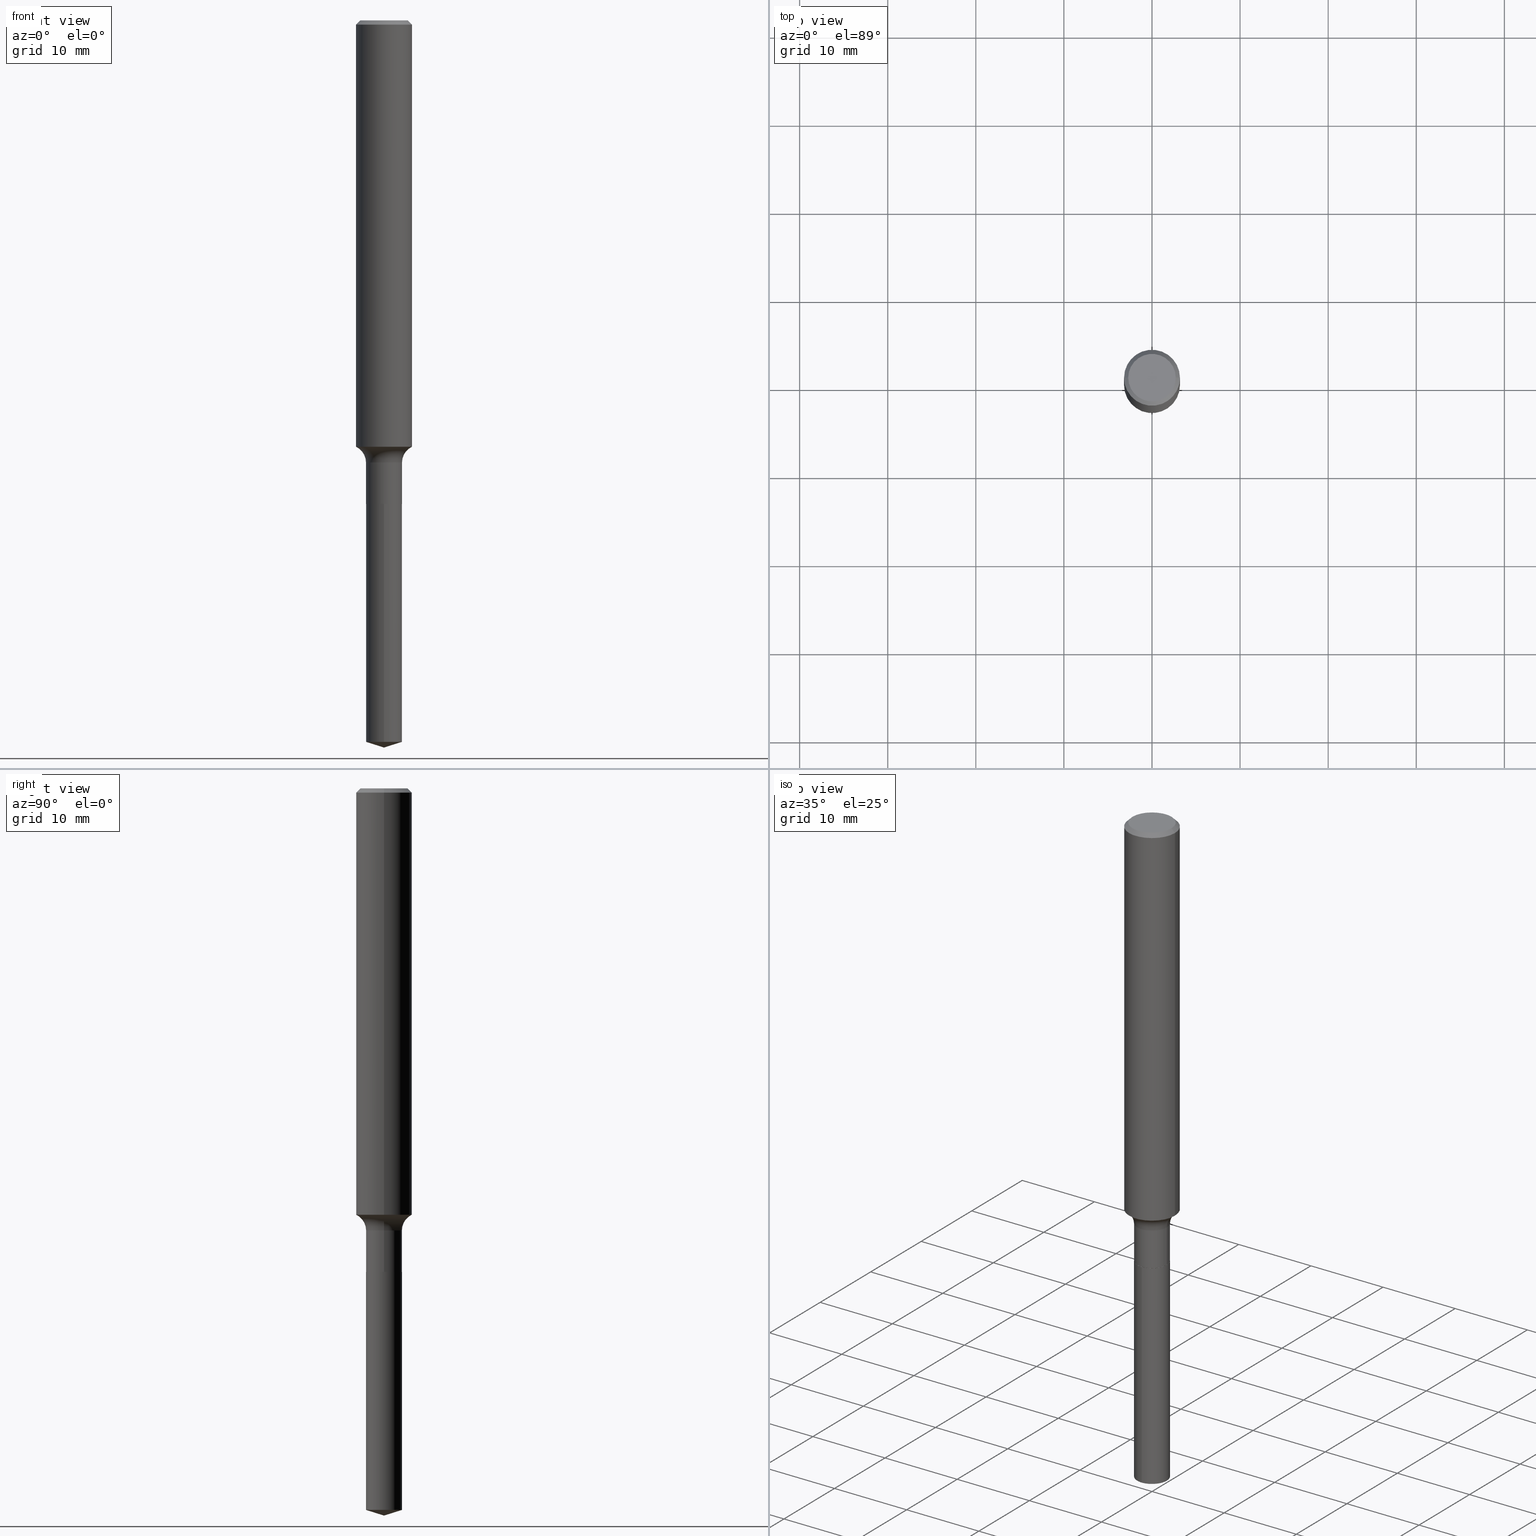
[diagram: canonical four-view strip — front | top / right | iso, engineering-drawing reading convention]
A machine part, canonical four-view strip (front | top / right | iso — engineering-drawing reading convention). The complete STEP part file that produces these views, byte-faithful:
ISO-10303-21;
HEADER;
FILE_DESCRIPTION (( 'STEP AP203' ),
    '1' );
FILE_NAME ('51587.STEP',
    '2024-04-19T13:04:09',
    ( '' ),
    ( '' ),
    'SwSTEP 2.0',
    'SolidWorks 2023',
    '' );
FILE_SCHEMA (( 'CONFIG_CONTROL_DESIGN' ));
ENDSEC;

DATA;
#1 = DIRECTION ( 'NONE',  ( -2.445357764823605070E-29, 3.491640356392940619E-15, 1.000000000000000000 ) ) ;
#2 = DIRECTION ( 'NONE',  ( 2.445468806185136597E-29, -3.491481338843145583E-15, -1.000000000000000000 ) ) ;
#3 = ORIENTED_EDGE ( 'NONE', *, *, #185, .T. ) ;
#4 = EDGE_CURVE ( 'NONE', #362, #324, #256, .T. ) ;
#5 = AXIS2_PLACEMENT_3D ( 'NONE', #204, #42, #87 ) ;
#6 = CARTESIAN_POINT ( 'NONE',  ( 7.885585719558198762E-29, -1.125886426831843108E-14, -3.224618447495242179 ) ) ;
#7 = VERTEX_POINT ( 'NONE', #62 ) ;
#8 = DIRECTION ( 'NONE',  ( -6.982962677686266711E-15, -1.000000000000000000, 3.393599992129519526E-15 ) ) ;
#9 = CARTESIAN_POINT ( 'NONE',  ( 1.316475442586645047E-30, -1.492449556612563060E-14, -2.161000000000000032 ) ) ;
#10 = AXIS2_PLACEMENT_3D ( 'NONE', #413, #480, #293 ) ;
#11 = CIRCLE ( 'NONE', #233, 0.08050000000000000211 ) ;
#12 = FACE_OUTER_BOUND ( 'NONE', #163, .T. ) ;
#13 = EDGE_LOOP ( 'NONE', ( #118, #239, #236, #288 ) ) ;
#14 = FACE_OUTER_BOUND ( 'NONE', #129, .T. ) ;
#15 = VERTEX_POINT ( 'NONE', #339 ) ;
#16 = CARTESIAN_POINT ( 'NONE',  ( 5.284658090166081280E-29, -7.545091173240038191E-15, -2.161000000000000032 ) ) ;
#17 = ORIENTED_EDGE ( 'NONE', *, *, #60, .F. ) ;
#18 = ORIENTED_EDGE ( 'NONE', *, *, #76, .T. ) ;
#19 = SECURITY_CLASSIFICATION_LEVEL ( 'unclassified' ) ;
#20 = ORIENTED_EDGE ( 'NONE', *, *, #343, .T. ) ;
#21 = MECHANICAL_CONTEXT ( 'NONE', #359, 'mechanical' ) ;
#22 = CARTESIAN_POINT ( 'NONE',  ( 0.000000000000000000, 0.000000000000000000, 0.000000000000000000 ) ) ;
#23 = SHAPE_DEFINITION_REPRESENTATION ( #435, #126 ) ;
#24 = DIRECTION ( 'NONE',  ( 1.000000000000000000, -6.982962677686264344E-15, 0.000000000000000000 ) ) ;
#25 = CLOSED_SHELL ( 'NONE', ( #135, #322, #88, #379, #66, #164, #175, #376, #196, #281, #464, #301 ) ) ;
#26 = DIRECTION ( 'NONE',  ( 1.000000000000000000, -6.982962677686265133E-15, 4.883557194083112901E-29 ) ) ;
#27 = DATE_TIME_ROLE ( 'classification_date' ) ;
#28 = FACE_OUTER_BOUND ( 'NONE', #452, .T. ) ;
#29 = CYLINDRICAL_SURFACE ( 'NONE', #403, 0.08050000000000000211 ) ;
#30 = VECTOR ( 'NONE', #383, 39.37007874015748143 ) ;
#31 = DIRECTION ( 'NONE',  ( -1.000000000000000000, 6.982962677686266711E-15, 0.000000000000000000 ) ) ;
#32 = APPROVAL ( #479, 'UNSPECIFIED' ) ;
#33 = CARTESIAN_POINT ( 'NONE',  ( 0.1250000000000001110, -8.728703347107842263E-16, 6.095220969744926047E-30 ) ) ;
#34 = FACE_OUTER_BOUND ( 'NONE', #52, .T. ) ;
#35 = EDGE_CURVE ( 'NONE', #120, #475, #58, .T. ) ;
#36 = ORIENTED_EDGE ( 'NONE', *, *, #76, .F. ) ;
#37 = VECTOR ( 'NONE', #140, 39.37007874015748143 ) ;
#38 = AXIS2_PLACEMENT_3D ( 'NONE', #112, #270, #227 ) ;
#39 = CARTESIAN_POINT ( 'NONE',  ( 0.08000000000000000167, -8.103728187454939844E-15, -2.161000000000000476 ) ) ;
#40 = LINE ( 'NONE', #390, #482 ) ;
#41 = ORIENTED_EDGE ( 'NONE', *, *, #458, .T. ) ;
#42 = DIRECTION ( 'NONE',  ( -2.445468806185136597E-29, 3.491481338843145583E-15, 1.000000000000000000 ) ) ;
#43 = ORIENTED_EDGE ( 'NONE', *, *, #35, .F. ) ;
#44 = CIRCLE ( 'NONE', #93, 0.08000000000000000167 ) ;
#45 = CARTESIAN_POINT ( 'NONE',  ( 6.364025535057318316E-46, -9.086141822531067035E-32, -2.602374448188125350E-17 ) ) ;
#46 = EDGE_CURVE ( 'NONE', #150, #463, #65, .T. ) ;
#47 = ORIENTED_EDGE ( 'NONE', *, *, #260, .T. ) ;
#48 = PLANE ( 'NONE',  #210 ) ;
#49 = EDGE_LOOP ( 'NONE', ( #43, #166, #266, #79 ) ) ;
#50 = EDGE_CURVE ( 'NONE', #108, #316, #411, .T. ) ;
#51 = DIRECTION ( 'NONE',  ( 1.000000000000000000, -6.982962677686265922E-15, 4.876176775795935793E-29 ) ) ;
#52 = EDGE_LOOP ( 'NONE', ( #89, #262, #425 ) ) ;
#53 = COORDINATED_UNIVERSAL_TIME_OFFSET ( 5, 0, .BEHIND. ) ;
#54 = EDGE_LOOP ( 'NONE', ( #78, #432, #106, #170 ) ) ;
#55 = CC_DESIGN_SECURITY_CLASSIFICATION ( #225, ( #335 ) ) ;
#56 = DESIGN_CONTEXT ( 'detailed design', #468, 'design' ) ;
#57 = COORDINATED_UNIVERSAL_TIME_OFFSET ( 5, 0, .BEHIND. ) ;
#58 = LINE ( 'NONE', #221, #348 ) ;
#59 = COORDINATED_UNIVERSAL_TIME_OFFSET ( 5, 0, .BEHIND. ) ;
#60 = EDGE_CURVE ( 'NONE', #226, #120, #296, .T. ) ;
#61 = CARTESIAN_POINT ( 'NONE',  ( 7.947896864779860842E-29, -1.134714388442684454E-14, -3.250000000000000000 ) ) ;
#62 = CARTESIAN_POINT ( 'NONE',  ( -0.1250000000000000000, -2.470819200019294286E-15, -0.01875000000000014155 ) ) ;
#63 = VECTOR ( 'NONE', #128, 39.37007874015748854 ) ;
#64 = CARTESIAN_POINT ( 'NONE',  ( 5.719869022869593535E-16, 0.08049999999998874722, -3.224618447495242624 ) ) ;
#65 = LINE ( 'NONE', #375, #121 ) ;
#66 = ADVANCED_FACE ( 'NONE', ( #28 ), #184, .T. ) ;
#67 = DIRECTION ( 'NONE',  ( -2.445357764823605070E-29, 3.491640356392940619E-15, 1.000000000000000000 ) ) ;
#68 = ORIENTED_EDGE ( 'NONE', *, *, #103, .T. ) ;
#69 = VECTOR ( 'NONE', #419, 39.37007874015748143 ) ;
#70 = CARTESIAN_POINT ( 'NONE',  ( 0.08049999999999998823, -7.460597324840031108E-15, -1.975800000000000001 ) ) ;
#71 = PLANE ( 'NONE',  #241 ) ;
#72 = DIRECTION ( 'NONE',  ( -6.982962677686266711E-15, -1.000000000000000000, 3.393599992129519526E-15 ) ) ;
#73 = ADVANCED_FACE ( 'NONE', ( #487 ), #176, .T. ) ;
#74 = AXIS2_PLACEMENT_3D ( 'NONE', #77, #431, #437 ) ;
#75 = CARTESIAN_POINT ( 'NONE',  ( -0.08000000000000000167, -6.974007757457847126E-15, -2.161000000000000476 ) ) ;
#76 = EDGE_CURVE ( 'NONE', #200, #316, #408, .T. ) ;
#77 = CARTESIAN_POINT ( 'NONE',  ( 0.000000000000000000, 0.000000000000000000, 0.000000000000000000 ) ) ;
#78 = ORIENTED_EDGE ( 'NONE', *, *, #387, .F. ) ;
#79 = ORIENTED_EDGE ( 'NONE', *, *, #309, .F. ) ;
#80 = CC_DESIGN_PERSON_AND_ORGANIZATION_ASSIGNMENT ( #366, #91, ( #335 ) ) ;
#81 = AXIS2_PLACEMENT_3D ( 'NONE', #16, #426, #246 ) ;
#82 = DIRECTION ( 'NONE',  ( 7.105427357601001859E-15, 1.000000000000000000, -3.491481338843145583E-15 ) ) ;
#83 = ORIENTED_EDGE ( 'NONE', *, *, #50, .T. ) ;
#84 = DIMENSIONAL_EXPONENTS ( 1.000000000000000000, 0.000000000000000000, 0.000000000000000000, 0.000000000000000000, 0.000000000000000000, 0.000000000000000000, 0.000000000000000000 ) ;
#85 = DIRECTION ( 'NONE',  ( -0.7071067811865454633, 2.468850131082235367E-15, -0.7071067811865495711 ) ) ;
#86 = EDGE_LOOP ( 'NONE', ( #394, #155, #18, #161 ) ) ;
#87 = DIRECTION ( 'NONE',  ( 1.000000000000000000, -6.982962677686265133E-15, 4.883557194083112901E-29 ) ) ;
#88 = ADVANCED_FACE ( 'NONE', ( #252 ), #99, .T. ) ;
#89 = ORIENTED_EDGE ( 'NONE', *, *, #343, .F. ) ;
#90 = MANIFOLD_SOLID_BREP ( 'Body-Move/Copy2[1]', #315 ) ;
#91 = PERSON_AND_ORGANIZATION_ROLE ( 'design_supplier' ) ;
#92 = AXIS2_PLACEMENT_3D ( 'NONE', #449, #134, #102 ) ;
#93 = AXIS2_PLACEMENT_3D ( 'NONE', #187, #145, #300 ) ;
#94 = DIRECTION ( 'NONE',  ( -6.982962677686266711E-15, -1.000000000000000000, 3.491481338843145583E-15 ) ) ;
#95 = PERSON_AND_ORGANIZATION ( #421, #169 ) ;
#96 = MANIFOLD_SOLID_BREP ( 'Body-Move/Copy2[2]', #25 ) ;
#97 = CARTESIAN_POINT ( 'NONE',  ( 5.284658090166081280E-29, -7.545091173240038191E-15, -2.161000000000000032 ) ) ;
#98 = FACE_OUTER_BOUND ( 'NONE', #54, .T. ) ;
#99 = CYLINDRICAL_SURFACE ( 'NONE', #168, 0.1250000000000001110 ) ;
#100 = CIRCLE ( 'NONE', #265, 0.1250000000000000000 ) ;
#101 = LOCAL_TIME ( 9, 4, 9.000000000000000000, #250 ) ;
#102 = DIRECTION ( 'NONE',  ( 1.000000000000000000, -6.982962677686259611E-15, 0.000000000000000000 ) ) ;
#103 = EDGE_CURVE ( 'NONE', #200, #402, #209, .T. ) ;
#104 = CC_DESIGN_PERSON_AND_ORGANIZATION_ASSIGNMENT ( #440, #172, ( #225 ) ) ;
#105 = DIRECTION ( 'NONE',  ( -1.000000000000000000, 6.982962677686265922E-15, -4.876176775795935793E-29 ) ) ;
#106 = ORIENTED_EDGE ( 'NONE', *, *, #171, .T. ) ;
#107 = DIRECTION ( 'NONE',  ( -2.445468806185136597E-29, 3.491481338843145583E-15, 1.000000000000000000 ) ) ;
#108 = VERTEX_POINT ( 'NONE', #369 ) ;
#109 = CIRCLE ( 'NONE', #378, 0.07800000000000002764 ) ;
#110 = APPROVAL_PERSON_ORGANIZATION ( #254, #167, #255 ) ;
#111 = CARTESIAN_POINT ( 'NONE',  ( -8.832627505290184583E-28, 1.261186682421496616E-13, 36.12007874015748143 ) ) ;
#112 = CARTESIAN_POINT ( 'NONE',  ( -8.832627505290184583E-28, 1.261186682421496616E-13, 36.12007874015748143 ) ) ;
#113 = CARTESIAN_POINT ( 'NONE',  ( -5.621284955536915100E-16, -0.08050000000000755163, -2.161000000000000032 ) ) ;
#114 = AXIS2_PLACEMENT_3D ( 'NONE', #222, #336, #406 ) ;
#115 = CIRCLE ( 'NONE', #159, 0.1062499999999999972 ) ;
#116 = CARTESIAN_POINT ( 'NONE',  ( 5.284658090166081280E-29, -7.545091173240038191E-15, -2.161000000000000032 ) ) ;
#117 = ORIENTED_EDGE ( 'NONE', *, *, #453, .T. ) ;
#118 = ORIENTED_EDGE ( 'NONE', *, *, #337, .F. ) ;
#119 = FACE_OUTER_BOUND ( 'NONE', #157, .T. ) ;
#120 = VERTEX_POINT ( 'NONE', #64 ) ;
#121 = VECTOR ( 'NONE', #441, 39.37007874015748143 ) ;
#122 = CIRCLE ( 'NONE', #151, 0.08050000000000000211 ) ;
#123 = DIRECTION ( 'NONE',  ( -2.445468806185136597E-29, 3.491481338843145583E-15, 1.000000000000000000 ) ) ;
#124 = CC_DESIGN_APPROVAL ( #32, ( #225 ) ) ;
#125 = VERTEX_POINT ( 'NONE', #299 ) ;
#126 = ADVANCED_BREP_SHAPE_REPRESENTATION ( '51587', ( #90, #96, #447 ), #355 ) ;
#127 = CC_DESIGN_DATE_AND_TIME_ASSIGNMENT ( #220, #27, ( #225 ) ) ;
#128 = DIRECTION ( 'NONE',  ( -6.659769872151632089E-15, -0.9537169507482267106, 0.3007057995042733411 ) ) ;
#129 = EDGE_LOOP ( 'NONE', ( #313, #283, #194, #328 ) ) ;
#130 = PERSON_AND_ORGANIZATION_ROLE ( 'creator' ) ;
#131 = CARTESIAN_POINT ( 'NONE',  ( 5.283435355762988478E-29, -7.543345432570617477E-15, -2.160500000000000309 ) ) ;
#132 = PERSON_AND_ORGANIZATION_ROLE ( 'design_owner' ) ;
#133 = APPROVAL_PERSON_ORGANIZATION ( #95, #302, #409 ) ;
#134 = DIRECTION ( 'NONE',  ( -2.445468806185136597E-29, 3.491481338843145583E-15, 1.000000000000000000 ) ) ;
#135 = ADVANCED_FACE ( 'NONE', ( #251 ), #481, .T. ) ;
#136 = CARTESIAN_POINT ( 'NONE',  ( 0.000000000000000000, 0.000000000000000000, 0.000000000000000000 ) ) ;
#137 = CARTESIAN_POINT ( 'NONE',  ( 0.1062499999999999972, -8.259777185439880671E-16, -2.602374448187577153E-17 ) ) ;
#138 = EDGE_CURVE ( 'NONE', #15, #243, #232, .T. ) ;
#139 = CALENDAR_DATE ( 2024, 19, 4 ) ;
#140 = DIRECTION ( 'NONE',  ( -2.445468806185136877E-29, 3.491481338843145188E-15, 1.000000000000000000 ) ) ;
#141 = APPROVAL_DATE_TIME ( #213, #167 ) ;
#142 = DIRECTION ( 'NONE',  ( -6.982962677686266711E-15, -1.000000000000000000, 3.393599992129519526E-15 ) ) ;
#143 = CIRCLE ( 'NONE', #334, 0.08050000000000000211 ) ;
#144 = VECTOR ( 'NONE', #1, 39.37007874015748143 ) ;
#145 = DIRECTION ( 'NONE',  ( -2.445468806185136597E-29, 3.491481338843145583E-15, 1.000000000000000000 ) ) ;
#146 = LINE ( 'NONE', #235, #393 ) ;
#147 = EDGE_CURVE ( 'NONE', #402, #200, #143, .T. ) ;
#148 = ORIENTED_EDGE ( 'NONE', *, *, #185, .F. ) ;
#149 = DIRECTION ( 'NONE',  ( -1.000000000000000000, 6.982962677686266711E-15, 0.000000000000000000 ) ) ;
#150 = VERTEX_POINT ( 'NONE', #137 ) ;
#151 = AXIS2_PLACEMENT_3D ( 'NONE', #272, #349, #189 ) ;
#152 = CARTESIAN_POINT ( 'NONE',  ( -0.08050000000000000211, 5.719869022868806646E-16, -3.959742747655199208E-30 ) ) ;
#153 = ORIENTED_EDGE ( 'NONE', *, *, #337, .T. ) ;
#154 = CARTESIAN_POINT ( 'NONE',  ( -5.621284955536915100E-16, -0.08050000000000755163, -2.161000000000000032 ) ) ;
#155 = ORIENTED_EDGE ( 'NONE', *, *, #147, .T. ) ;
#156 = CYLINDRICAL_SURFACE ( 'NONE', #188, 0.08050000000000000211 ) ;
#157 = EDGE_LOOP ( 'NONE', ( #436, #203 ) ) ;
#158 = VECTOR ( 'NONE', #310, 39.37007874015748143 ) ;
#159 = AXIS2_PLACEMENT_3D ( 'NONE', #45, #244, #392 ) ;
#160 = DIRECTION ( 'NONE',  ( -1.000000000000000000, 7.105427357600995548E-15, 0.000000000000000000 ) ) ;
#161 = ORIENTED_EDGE ( 'NONE', *, *, #50, .F. ) ;
#162 = LENGTH_MEASURE_WITH_UNIT ( LENGTH_MEASURE( 0.02539999999999999897 ), #279 );
#163 = EDGE_LOOP ( 'NONE', ( #354, #358 ) ) ;
#164 = ADVANCED_FACE ( 'NONE', ( #477 ), #29, .T. ) ;
#165 = CYLINDRICAL_SURFACE ( 'NONE', #74, 0.1250000000000001110 ) ;
#166 = ORIENTED_EDGE ( 'NONE', *, *, #234, .T. ) ;
#167 = APPROVAL ( #374, 'UNSPECIFIED' ) ;
#168 = AXIS2_PLACEMENT_3D ( 'NONE', #439, #216, #214 ) ;
#169 = ORGANIZATION ( 'UNSPECIFIED', 'UNSPECIFIED', '' ) ;
#170 = ORIENTED_EDGE ( 'NONE', *, *, #430, .T. ) ;
#171 = EDGE_CURVE ( 'NONE', #362, #316, #109, .T. ) ;
#172 = PERSON_AND_ORGANIZATION_ROLE ( 'classification_officer' ) ;
#173 = EDGE_LOOP ( 'NONE', ( #278, #153 ) ) ;
#174 = APPLICATION_PROTOCOL_DEFINITION ( 'international standard', 'config_control_design', 1994, #359 ) ;
#175 = ADVANCED_FACE ( 'NONE', ( #98 ), #325, .F. ) ;
#176 = CYLINDRICAL_SURFACE ( 'NONE', #422, 0.08050000000000000211 ) ;
#177 = CIRCLE ( 'NONE', #305, 0.1250000000000000000 ) ;
#178 = LOCAL_TIME ( 9, 4, 9.000000000000000000, #57 ) ;
#179 = CARTESIAN_POINT ( 'NONE',  ( 0.08050000000000000211, -5.621284955537444623E-16, 3.925322304515727977E-30 ) ) ;
#180 = EDGE_CURVE ( 'NONE', #402, #108, #410, .T. ) ;
#181 = APPROVAL_STATUS ( 'not_yet_approved' ) ;
#182 = DIRECTION ( 'NONE',  ( -2.445468806185136597E-29, 3.491481338843145583E-15, 1.000000000000000000 ) ) ;
#183 = DIRECTION ( 'NONE',  ( 1.000000000000000000, 0.000000000000000000, 0.000000000000000000 ) ) ;
#184 = CYLINDRICAL_SURFACE ( 'NONE', #291, 0.08050000000000000211 ) ;
#185 = EDGE_CURVE ( 'NONE', #324, #7, #146, .T. ) ;
#186 = VECTOR ( 'NONE', #367, 39.37007874015748143 ) ;
#187 = CARTESIAN_POINT ( 'NONE',  ( 5.284658090166081280E-29, -7.545091173240039769E-15, -2.161000000000000476 ) ) ;
#188 = AXIS2_PLACEMENT_3D ( 'NONE', #116, #277, #206 ) ;
#189 = DIRECTION ( 'NONE',  ( -6.982962677686266711E-15, -1.000000000000000000, 6.787199984259039052E-15 ) ) ;
#190 = CARTESIAN_POINT ( 'NONE',  ( 5.284658090166081280E-29, -7.545091173240038191E-15, -2.161000000000000032 ) ) ;
#191 = ORIENTED_EDGE ( 'NONE', *, *, #180, .T. ) ;
#192 = EDGE_CURVE ( 'NONE', #7, #463, #177, .T. ) ;
#193 = DIRECTION ( 'NONE',  ( 1.000000000000000000, -6.982962677686266711E-15, 0.000000000000000000 ) ) ;
#194 = ORIENTED_EDGE ( 'NONE', *, *, #229, .F. ) ;
#195 = CONICAL_SURFACE ( 'NONE', #472, 0.1250000000000000000, 0.7853981633974453924 ) ;
#196 = ADVANCED_FACE ( 'NONE', ( #459 ), #195, .T. ) ;
#197 = LINE ( 'NONE', #33, #363 ) ;
#198 = CARTESIAN_POINT ( 'NONE',  ( 7.947412735676717178E-29, -1.134783115827705780E-14, -3.250000000000000000 ) ) ;
#199 = CARTESIAN_POINT ( 'NONE',  ( -0.1062499999999999972, 7.746724220558198188E-16, -2.602374448188655674E-17 ) ) ;
#200 = VERTEX_POINT ( 'NONE', #303 ) ;
#201 = LOCAL_TIME ( 9, 4, 9.000000000000000000, #486 ) ;
#202 = CARTESIAN_POINT ( 'NONE',  ( 4.585254011597165626E-31, -6.546527510330947764E-17, -0.01875000000000014155 ) ) ;
#203 = ORIENTED_EDGE ( 'NONE', *, *, #309, .T. ) ;
#204 = CARTESIAN_POINT ( 'NONE',  ( 4.831757267260592925E-29, -6.898468829286286448E-15, -1.975800000000000001 ) ) ;
#205 = ORIENTED_EDGE ( 'NONE', *, *, #453, .F. ) ;
#206 = DIRECTION ( 'NONE',  ( -6.982962677686266711E-15, -1.000000000000000000, 3.393599992129519526E-15 ) ) ;
#207 = ORIENTED_EDGE ( 'NONE', *, *, #253, .F. ) ;
#208 = ADVANCED_FACE ( 'NONE', ( #34 ), #257, .T. ) ;
#209 = CIRCLE ( 'NONE', #248, 0.08050000000000000211 ) ;
#210 = AXIS2_PLACEMENT_3D ( 'NONE', #9, #399, #51 ) ;
#211 = AXIS2_PLACEMENT_3D ( 'NONE', #323, #82, #160 ) ;
#212 = VERTEX_POINT ( 'NONE', #113 ) ;
#213 = DATE_AND_TIME ( #329, #178 ) ;
#214 = DIRECTION ( 'NONE',  ( 1.000000000000000000, -6.982962677686267499E-15, 4.876176775795936353E-29 ) ) ;
#215 = CALENDAR_DATE ( 2024, 19, 4 ) ;
#216 = DIRECTION ( 'NONE',  ( -2.445468806185136597E-29, 3.491481338843145583E-15, 1.000000000000000000 ) ) ;
#217 = CIRCLE ( 'NONE', #307, 0.08050000000000000211 ) ;
#218 = CARTESIAN_POINT ( 'NONE',  ( 4.831757267260592925E-29, -6.898468829286286448E-15, -1.975800000000000001 ) ) ;
#219 = EDGE_CURVE ( 'NONE', #125, #120, #122, .T. ) ;
#220 = DATE_AND_TIME ( #412, #101 ) ;
#221 = CARTESIAN_POINT ( 'NONE',  ( 5.719869022869334197E-16, 0.08049999999999245259, -2.161000000000000476 ) ) ;
#222 = CARTESIAN_POINT ( 'NONE',  ( 5.284658090166081280E-29, -7.545091173240039769E-15, -2.161000000000000476 ) ) ;
#223 = DIRECTION ( 'NONE',  ( 2.445468806185136597E-29, -3.491481338843145583E-15, -1.000000000000000000 ) ) ;
#224 = AXIS2_PLACEMENT_3D ( 'NONE', #465, #361, #428 ) ;
#225 = SECURITY_CLASSIFICATION ( '', '', #19 ) ;
#226 = VERTEX_POINT ( 'NONE', #420 ) ;
#227 = DIRECTION ( 'NONE',  ( -6.982962677686265133E-15, -1.000000000000000000, 3.500519750498698121E-15 ) ) ;
#228 = DIRECTION ( 'NONE',  ( -2.445357764823605070E-29, 3.491640356392940619E-15, 1.000000000000000000 ) ) ;
#229 = EDGE_CURVE ( 'NONE', #212, #475, #11, .T. ) ;
#230 = EDGE_LOOP ( 'NONE', ( #280, #3, #311, #207 ) ) ;
#231 = LINE ( 'NONE', #154, #144 ) ;
#232 = CIRCLE ( 'NONE', #114, 0.08000000000000000167 ) ;
#233 = AXIS2_PLACEMENT_3D ( 'NONE', #423, #344, #72 ) ;
#234 = EDGE_CURVE ( 'NONE', #120, #125, #217, .T. ) ;
#235 = CARTESIAN_POINT ( 'NONE',  ( -0.1250000000000001110, 8.881784197001260212E-16, -6.148668862818637832E-30 ) ) ;
#236 = ORIENTED_EDGE ( 'NONE', *, *, #442, .T. ) ;
#237 = DIRECTION ( 'NONE',  ( -2.445468806185136597E-29, 3.491481338843145583E-15, 1.000000000000000000 ) ) ;
#238 = ORIENTED_EDGE ( 'NONE', *, *, #234, .F. ) ;
#239 = ORIENTED_EDGE ( 'NONE', *, *, #46, .T. ) ;
#240 = AXIS2_PLACEMENT_3D ( 'NONE', #218, #372, #26 ) ;
#241 = AXIS2_PLACEMENT_3D ( 'NONE', #382, #351, #105 ) ;
#242 = DIRECTION ( 'NONE',  ( 1.000000000000000000, -6.982962677686267499E-15, 0.000000000000000000 ) ) ;
#243 = VERTEX_POINT ( 'NONE', #75 ) ;
#244 = DIRECTION ( 'NONE',  ( -2.445468806185136597E-29, 3.491481338843145583E-15, 1.000000000000000000 ) ) ;
#245 = CARTESIAN_POINT ( 'NONE',  ( 4.659499201386203466E-29, -6.652529964335534624E-15, -1.905360309483927761 ) ) ;
#246 = DIRECTION ( 'NONE',  ( 6.982962677686265922E-15, 1.000000000000000000, -3.491640356392940619E-15 ) ) ;
#247 = DIRECTION ( 'NONE',  ( -2.445468806185136597E-29, 3.491481338843145583E-15, 1.000000000000000000 ) ) ;
#248 = AXIS2_PLACEMENT_3D ( 'NONE', #333, #414, #259 ) ;
#249 = LOCAL_TIME ( 9, 4, 9.000000000000000000, #53 ) ;
#250 = COORDINATED_UNIVERSAL_TIME_OFFSET ( 5, 0, .BEHIND. ) ;
#251 = FACE_OUTER_BOUND ( 'NONE', #397, .T. ) ;
#252 = FACE_OUTER_BOUND ( 'NONE', #230, .T. ) ;
#253 = EDGE_CURVE ( 'NONE', #362, #463, #197, .T. ) ;
#254 = PERSON_AND_ORGANIZATION ( #421, #169 ) ;
#255 = APPROVAL_ROLE ( '' ) ;
#256 = CIRCLE ( 'NONE', #461, 0.1250000000000002498 ) ;
#257 = CONICAL_SURFACE ( 'NONE', #38, 124.8659371009152892, 1.265363707695892126 ) ;
#258 = DIRECTION ( 'NONE',  ( -2.445357764823605070E-29, 3.491640356392940619E-15, 1.000000000000000000 ) ) ;
#259 = DIRECTION ( 'NONE',  ( 1.000000000000000000, -6.982962677686266711E-15, 0.000000000000000000 ) ) ;
#260 = EDGE_CURVE ( 'NONE', #243, #15, #44, .T. ) ;
#261 = FACE_OUTER_BOUND ( 'NONE', #470, .T. ) ;
#262 = ORIENTED_EDGE ( 'NONE', *, *, #60, .T. ) ;
#263 = EDGE_CURVE ( 'NONE', #125, #212, #231, .T. ) ;
#264 = CARTESIAN_POINT ( 'NONE',  ( 4.585254011597165626E-31, -6.546527510330947764E-17, -0.01875000000000014155 ) ) ;
#265 = AXIS2_PLACEMENT_3D ( 'NONE', #202, #123, #285 ) ;
#266 = ORIENTED_EDGE ( 'NONE', *, *, #263, .T. ) ;
#267 = EDGE_CURVE ( 'NONE', #15, #200, #385, .T. ) ;
#268 = DIRECTION ( 'NONE',  ( -2.445468806185136877E-29, 3.491481338843145188E-15, 1.000000000000000000 ) ) ;
#269 = CC_DESIGN_PERSON_AND_ORGANIZATION_ASSIGNMENT ( #371, #132, ( #373 ) ) ;
#270 = DIRECTION ( 'NONE',  ( -2.445357764823605070E-29, 3.491640356392940619E-15, 1.000000000000000000 ) ) ;
#271 = PRODUCT_DEFINITION ( 'UNKNOWN', '', #335, #56 ) ;
#272 = CARTESIAN_POINT ( 'NONE',  ( 7.885585719558198762E-29, -1.125886426831843108E-14, -3.224618447495242179 ) ) ;
#273 = EDGE_CURVE ( 'NONE', #243, #402, #451, .T. ) ;
#274 = ORIENTED_EDGE ( 'NONE', *, *, #103, .F. ) ;
#275 = CIRCLE ( 'NONE', #211, 0.07800000000000002764 ) ;
#276 = LOCAL_TIME ( 9, 4, 9.000000000000000000, #59 ) ;
#277 = DIRECTION ( 'NONE',  ( -2.445357764823605070E-29, 3.491640356392940619E-15, 1.000000000000000000 ) ) ;
#278 = ORIENTED_EDGE ( 'NONE', *, *, #485, .T. ) ;
#279 =( LENGTH_UNIT ( ) NAMED_UNIT ( * ) SI_UNIT ( $, .METRE. ) );
#280 = ORIENTED_EDGE ( 'NONE', *, *, #4, .T. ) ;
#281 = ADVANCED_FACE ( 'NONE', ( #492 ), #71, .F. ) ;
#282 = FACE_OUTER_BOUND ( 'NONE', #418, .T. ) ;
#283 = ORIENTED_EDGE ( 'NONE', *, *, #35, .T. ) ;
#284 = CIRCLE ( 'NONE', #386, 0.1250000000000002498 ) ;
#285 = DIRECTION ( 'NONE',  ( 1.000000000000000000, -6.982962677686266711E-15, 0.000000000000000000 ) ) ;
#286 = ORIENTED_EDGE ( 'NONE', *, *, #138, .T. ) ;
#287 = PLANE ( 'NONE',  #81 ) ;
#288 = ORIENTED_EDGE ( 'NONE', *, *, #458, .F. ) ;
#289 = PERSON_AND_ORGANIZATION ( #421, #169 ) ;
#290 = CARTESIAN_POINT ( 'NONE',  ( 0.1584999999999999742, -8.005268413699560732E-15, -1.975800000000000001 ) ) ;
#291 = AXIS2_PLACEMENT_3D ( 'NONE', #22, #446, #341 ) ;
#292 = DIRECTION ( 'NONE',  ( 0.000000000000000000, 0.000000000000000000, 1.000000000000000000 ) ) ;
#293 = DIRECTION ( 'NONE',  ( 1.000000000000000000, -6.982962677686267499E-15, 0.000000000000000000 ) ) ;
#294 = DIRECTION ( 'NONE',  ( 1.000000000000000000, -6.982962677686266711E-15, 4.876176775795935232E-29 ) ) ;
#295 = CALENDAR_DATE ( 2024, 19, 4 ) ;
#296 = LINE ( 'NONE', #61, #186 ) ;
#297 = PERSON_AND_ORGANIZATION ( #421, #169 ) ;
#298 = CONICAL_SURFACE ( 'NONE', #317, 124.8659371009152892, 1.265363707695892126 ) ;
#299 = CARTESIAN_POINT ( 'NONE',  ( -5.621284955536654776E-16, -0.08050000000001125700, -3.224618447495241735 ) ) ;
#300 = DIRECTION ( 'NONE',  ( 1.000000000000000000, -6.982962677686259611E-15, 0.000000000000000000 ) ) ;
#301 = ADVANCED_FACE ( 'NONE', ( #261 ), #380, .T. ) ;
#302 = APPROVAL ( #181, 'UNSPECIFIED' ) ;
#303 = CARTESIAN_POINT ( 'NONE',  ( 0.08050000000000000211, -8.105473928124362136E-15, -2.160500000000000309 ) ) ;
#304 = EDGE_LOOP ( 'NONE', ( #205, #391, #83, #438 ) ) ;
#305 = AXIS2_PLACEMENT_3D ( 'NONE', #264, #456, #193 ) ;
#306 = CARTESIAN_POINT ( 'NONE',  ( -0.1250000000000002776, -5.764351544635407025E-15, -1.905360309483927761 ) ) ;
#307 = AXIS2_PLACEMENT_3D ( 'NONE', #6, #67, #381 ) ;
#308 = ORIENTED_EDGE ( 'NONE', *, *, #192, .F. ) ;
#309 = EDGE_CURVE ( 'NONE', #475, #212, #490, .T. ) ;
#310 = DIRECTION ( 'NONE',  ( -2.445468806185136877E-29, 3.491481338843145188E-15, 1.000000000000000000 ) ) ;
#311 = ORIENTED_EDGE ( 'NONE', *, *, #442, .F. ) ;
#312 = FACE_OUTER_BOUND ( 'NONE', #13, .T. ) ;
#313 = ORIENTED_EDGE ( 'NONE', *, *, #219, .T. ) ;
#314 = FACE_OUTER_BOUND ( 'NONE', #304, .T. ) ;
#315 = CLOSED_SHELL ( 'NONE', ( #467, #208, #330, #73, #357 ) ) ;
#316 = VERTEX_POINT ( 'NONE', #70 ) ;
#317 = AXIS2_PLACEMENT_3D ( 'NONE', #111, #327, #352 ) ;
#318 = CARTESIAN_POINT ( 'NONE',  ( 5.719869022869595507E-16, 0.08049999999999245259, -2.161000000000000476 ) ) ;
#319 = ORIENTED_EDGE ( 'NONE', *, *, #267, .F. ) ;
#320 = DIRECTION ( 'NONE',  ( 1.000000000000000000, -6.982962677686264344E-15, 0.000000000000000000 ) ) ;
#321 = ORIENTED_EDGE ( 'NONE', *, *, #147, .F. ) ;
#322 = ADVANCED_FACE ( 'NONE', ( #312 ), #342, .T. ) ;
#323 = CARTESIAN_POINT ( 'NONE',  ( -0.1584999999999999742, -5.772258593106527837E-15, -1.975800000000000001 ) ) ;
#324 = VERTEX_POINT ( 'NONE', #306 ) ;
#325 = TOROIDAL_SURFACE ( 'NONE', #240, 0.1584999999999999742, 0.07800000000000001377 ) ;
#326 = AXIS2_PLACEMENT_3D ( 'NONE', #190, #228, #8 ) ;
#327 = DIRECTION ( 'NONE',  ( -2.445357764823605070E-29, 3.491640356392940619E-15, 1.000000000000000000 ) ) ;
#328 = ORIENTED_EDGE ( 'NONE', *, *, #263, .F. ) ;
#329 = CALENDAR_DATE ( 2024, 19, 4 ) ;
#330 = ADVANCED_FACE ( 'NONE', ( #455 ), #298, .T. ) ;
#331 = CARTESIAN_POINT ( 'NONE',  ( 0.000000000000000000, 0.000000000000000000, 0.000000000000000000 ) ) ;
#332 = PERSON_AND_ORGANIZATION ( #421, #169 ) ;
#333 = CARTESIAN_POINT ( 'NONE',  ( 5.283435355762988478E-29, -7.543345432570617477E-15, -2.160500000000000309 ) ) ;
#334 = AXIS2_PLACEMENT_3D ( 'NONE', #131, #377, #484 ) ;
#335 = PRODUCT_DEFINITION_FORMATION_WITH_SPECIFIED_SOURCE ( 'ANY', '', #373, .NOT_KNOWN. ) ;
#336 = DIRECTION ( 'NONE',  ( -2.445468806185136597E-29, 3.491481338843145583E-15, 1.000000000000000000 ) ) ;
#337 = EDGE_CURVE ( 'NONE', #150, #384, #115, .T. ) ;
#338 = DATE_AND_TIME ( #139, #249 ) ;
#339 = CARTESIAN_POINT ( 'NONE',  ( 0.08000000000000000167, -8.103728187454939844E-15, -2.161000000000000476 ) ) ;
#340 = APPLICATION_PROTOCOL_DEFINITION ( 'international standard', 'config_control_design', 1994, #468 ) ;
#341 = DIRECTION ( 'NONE',  ( 1.000000000000000000, -6.982962677686266711E-15, 4.876176775795935232E-29 ) ) ;
#342 = CONICAL_SURFACE ( 'NONE', #433, 0.1250000000000000000, 0.7853981633974453924 ) ;
#343 = EDGE_CURVE ( 'NONE', #226, #125, #474, .T. ) ;
#344 = DIRECTION ( 'NONE',  ( -2.445357764823605070E-29, 3.491640356392940619E-15, 1.000000000000000000 ) ) ;
#345 = PRODUCT_RELATED_PRODUCT_CATEGORY ( 'detail', '', ( #373 ) ) ;
#346 = DIRECTION ( 'NONE',  ( -2.445468806185136877E-29, 3.491481338843145188E-15, 1.000000000000000000 ) ) ;
#347 = CARTESIAN_POINT ( 'NONE',  ( 4.585254011597165626E-31, -6.546527510330947764E-17, -0.01875000000000014155 ) ) ;
#348 = VECTOR ( 'NONE', #258, 39.37007874015748143 ) ;
#349 = DIRECTION ( 'NONE',  ( -2.445357764823605070E-29, 3.491640356392940619E-15, 1.000000000000000000 ) ) ;
#350 = ORIENTED_EDGE ( 'NONE', *, *, #267, .T. ) ;
#351 = DIRECTION ( 'NONE',  ( 2.438088387897960049E-29, -3.491481338843145188E-15, -1.000000000000000000 ) ) ;
#352 = DIRECTION ( 'NONE',  ( -6.982962677686265133E-15, -1.000000000000000000, 3.500519750498698121E-15 ) ) ;
#353 = CARTESIAN_POINT ( 'NONE',  ( -0.08050000000000000211, -6.648920228641571199E-15, -2.160500000000000309 ) ) ;
#354 = ORIENTED_EDGE ( 'NONE', *, *, #138, .F. ) ;
#355 =( GEOMETRIC_REPRESENTATION_CONTEXT ( 3 ) GLOBAL_UNCERTAINTY_ASSIGNED_CONTEXT ( ( #401 ) ) GLOBAL_UNIT_ASSIGNED_CONTEXT ( ( #469, #488, #405 ) ) REPRESENTATION_CONTEXT ( 'NONE', 'WORKASPACE' ) );
#356 = DIRECTION ( 'NONE',  ( -2.445468806185136597E-29, 3.491481338843145583E-15, 1.000000000000000000 ) ) ;
#357 = ADVANCED_FACE ( 'NONE', ( #119 ), #287, .F. ) ;
#358 = ORIENTED_EDGE ( 'NONE', *, *, #260, .F. ) ;
#359 = APPLICATION_CONTEXT ( 'configuration controlled 3d designs of mechanical parts and assemblies' ) ;
#360 = ORIENTED_EDGE ( 'NONE', *, *, #430, .F. ) ;
#361 = DIRECTION ( 'NONE',  ( -2.445468806185136597E-29, 3.491481338843145583E-15, 1.000000000000000000 ) ) ;
#362 = VERTEX_POINT ( 'NONE', #434 ) ;
#363 = VECTOR ( 'NONE', #346, 39.37007874015748143 ) ;
#364 = APPROVAL_PERSON_ORGANIZATION ( #332, #32, #476 ) ;
#365 = ORIENTED_EDGE ( 'NONE', *, *, #273, .T. ) ;
#366 = PERSON_AND_ORGANIZATION ( #421, #169 ) ;
#367 = DIRECTION ( 'NONE',  ( 6.776566513254257349E-15, 0.9537169507482289310, 0.3007057995042667353 ) ) ;
#368 = DATE_AND_TIME ( #215, #276 ) ;
#369 = CARTESIAN_POINT ( 'NONE',  ( -0.08049999999999998823, -6.648920228641571199E-15, -1.975800000000000001 ) ) ;
#370 = AXIS2_PLACEMENT_3D ( 'NONE', #415, #107, #417 ) ;
#371 = PERSON_AND_ORGANIZATION ( #421, #169 ) ;
#372 = DIRECTION ( 'NONE',  ( -2.445468806185136597E-29, 3.491481338843145583E-15, 1.000000000000000000 ) ) ;
#373 = PRODUCT ( '51587', '51587', '', ( #21 ) ) ;
#374 = APPROVAL_STATUS ( 'not_yet_approved' ) ;
#375 = CARTESIAN_POINT ( 'NONE',  ( 0.1250000000000000000, -9.230275248247509846E-16, -0.01875000000000014155 ) ) ;
#376 = ADVANCED_FACE ( 'NONE', ( #282 ), #165, .T. ) ;
#377 = DIRECTION ( 'NONE',  ( -2.445468806185136597E-29, 3.491481338843145583E-15, 1.000000000000000000 ) ) ;
#378 = AXIS2_PLACEMENT_3D ( 'NONE', #290, #94, #444 ) ;
#379 = ADVANCED_FACE ( 'NONE', ( #314 ), #424, .F. ) ;
#380 = CONICAL_SURFACE ( 'NONE', #370, 0.08000000000000000167, 0.7853981633972775267 ) ;
#381 = DIRECTION ( 'NONE',  ( -6.982962677686266711E-15, -1.000000000000000000, 6.787199984259039052E-15 ) ) ;
#382 = CARTESIAN_POINT ( 'NONE',  ( 3.182012767528659158E-46, -4.543070911265533518E-32, -1.301187224094062675E-17 ) ) ;
#383 = DIRECTION ( 'NONE',  ( 0.7071067811864267805, -2.468850131080992517E-15, 0.7071067811866682540 ) ) ;
#384 = VERTEX_POINT ( 'NONE', #199 ) ;
#385 = LINE ( 'NONE', #39, #30 ) ;
#386 = AXIS2_PLACEMENT_3D ( 'NONE', #396, #356, #320 ) ;
#387 = EDGE_CURVE ( 'NONE', #324, #108, #275, .T. ) ;
#388 = CARTESIAN_POINT ( 'NONE',  ( -0.08000000000000000167, -6.976656984631959116E-15, -2.161000000000000476 ) ) ;
#389 = ORIENTED_EDGE ( 'NONE', *, *, #253, .T. ) ;
#390 = CARTESIAN_POINT ( 'NONE',  ( -0.1250000000000000000, 8.074050596074738982E-16, -0.01875000000000014155 ) ) ;
#391 = ORIENTED_EDGE ( 'NONE', *, *, #387, .T. ) ;
#392 = DIRECTION ( 'NONE',  ( 1.000000000000000000, -6.982962677686266711E-15, 4.877714189860772023E-29 ) ) ;
#393 = VECTOR ( 'NONE', #268, 39.37007874015748143 ) ;
#394 = ORIENTED_EDGE ( 'NONE', *, *, #180, .F. ) ;
#395 = CIRCLE ( 'NONE', #491, 0.08049999999999998823 ) ;
#396 = CARTESIAN_POINT ( 'NONE',  ( 4.659499201386203466E-29, -6.652529964335534624E-15, -1.905360309483927761 ) ) ;
#397 = EDGE_LOOP ( 'NONE', ( #286, #365, #274, #319 ) ) ;
#398 = CC_DESIGN_PERSON_AND_ORGANIZATION_ASSIGNMENT ( #289, #448, ( #335 ) ) ;
#399 = DIRECTION ( 'NONE',  ( -2.438088387897960049E-29, 3.491481338843145188E-15, 1.000000000000000000 ) ) ;
#400 = ORIENTED_EDGE ( 'NONE', *, *, #46, .F. ) ;
#401 = UNCERTAINTY_MEASURE_WITH_UNIT (LENGTH_MEASURE( 1.000000000000000082E-05 ), #469, 'distance_accuracy_value', 'NONE');
#402 = VERTEX_POINT ( 'NONE', #353 ) ;
#403 = AXIS2_PLACEMENT_3D ( 'NONE', #331, #182, #294 ) ;
#404 = CIRCLE ( 'NONE', #224, 0.1062499999999999972 ) ;
#405 =( NAMED_UNIT ( * ) SI_UNIT ( $, .STERADIAN. ) SOLID_ANGLE_UNIT ( ) );
#406 = DIRECTION ( 'NONE',  ( 1.000000000000000000, -6.982962677686259611E-15, 0.000000000000000000 ) ) ;
#407 = APPROVAL_DATE_TIME ( #338, #302 ) ;
#408 = LINE ( 'NONE', #179, #37 ) ;
#409 = APPROVAL_ROLE ( '' ) ;
#410 = LINE ( 'NONE', #152, #158 ) ;
#411 = CIRCLE ( 'NONE', #10, 0.08049999999999998823 ) ;
#412 = CALENDAR_DATE ( 2024, 19, 4 ) ;
#413 = CARTESIAN_POINT ( 'NONE',  ( 4.831757267260592925E-29, -6.898468829286286448E-15, -1.975800000000000001 ) ) ;
#414 = DIRECTION ( 'NONE',  ( -2.445468806185136597E-29, 3.491481338843145583E-15, 1.000000000000000000 ) ) ;
#415 = CARTESIAN_POINT ( 'NONE',  ( 5.284658090166081280E-29, -7.545091173240039769E-15, -2.161000000000000476 ) ) ;
#416 = CC_DESIGN_APPROVAL ( #302, ( #271 ) ) ;
#417 = DIRECTION ( 'NONE',  ( 1.000000000000000000, -6.982962677686259611E-15, 0.000000000000000000 ) ) ;
#418 = EDGE_LOOP ( 'NONE', ( #148, #117, #389, #308 ) ) ;
#419 = DIRECTION ( 'NONE',  ( -0.7071067811864267805, 7.493145998869918709E-15, 0.7071067811866682540 ) ) ;
#420 = CARTESIAN_POINT ( 'NONE',  ( 7.947412735676716057E-29, -1.134783115827705780E-14, -3.250000000000000000 ) ) ;
#421 = PERSON ( 'UNSPECIFIED', 'UNSPECIFIED', 'UNSPECIFIED', ('UNSPECIFIED'), ('UNSPECIFIED'), ('UNSPECIFIED') ) ;
#422 = AXIS2_PLACEMENT_3D ( 'NONE', #97, #489, #142 ) ;
#423 = CARTESIAN_POINT ( 'NONE',  ( 5.284658090166081280E-29, -7.545091173240038191E-15, -2.161000000000000032 ) ) ;
#424 = TOROIDAL_SURFACE ( 'NONE', #5, 0.1584999999999999742, 0.07800000000000001377 ) ;
#425 = ORIENTED_EDGE ( 'NONE', *, *, #219, .F. ) ;
#426 = DIRECTION ( 'NONE',  ( 2.445357764823604790E-29, -3.491640356392940619E-15, -1.000000000000000000 ) ) ;
#427 = EDGE_LOOP ( 'NONE', ( #400, #457, #41, #473 ) ) ;
#428 = DIRECTION ( 'NONE',  ( 1.000000000000000000, -6.982962677686266711E-15, 4.877714189860772023E-29 ) ) ;
#429 = EDGE_LOOP ( 'NONE', ( #17, #20, #238 ) ) ;
#430 = EDGE_CURVE ( 'NONE', #316, #108, #395, .T. ) ;
#431 = DIRECTION ( 'NONE',  ( -2.445468806185136597E-29, 3.491481338843145583E-15, 1.000000000000000000 ) ) ;
#432 = ORIENTED_EDGE ( 'NONE', *, *, #4, .F. ) ;
#433 = AXIS2_PLACEMENT_3D ( 'NONE', #347, #2, #149 ) ;
#434 = CARTESIAN_POINT ( 'NONE',  ( 0.1250000000000002776, -7.525400299046321119E-15, -1.905360309483927761 ) ) ;
#435 = PRODUCT_DEFINITION_SHAPE ( 'NONE', 'NONE',  #271 ) ;
#436 = ORIENTED_EDGE ( 'NONE', *, *, #229, .T. ) ;
#437 = DIRECTION ( 'NONE',  ( 1.000000000000000000, -6.982962677686267499E-15, 4.876176775795936353E-29 ) ) ;
#438 = ORIENTED_EDGE ( 'NONE', *, *, #171, .F. ) ;
#439 = CARTESIAN_POINT ( 'NONE',  ( 0.000000000000000000, 0.000000000000000000, 0.000000000000000000 ) ) ;
#440 = PERSON_AND_ORGANIZATION ( #421, #169 ) ;
#441 = DIRECTION ( 'NONE',  ( 0.7071067811865454633, -7.319954787623248157E-15, -0.7071067811865495711 ) ) ;
#442 = EDGE_CURVE ( 'NONE', #463, #7, #100, .T. ) ;
#443 = APPROVAL_DATE_TIME ( #368, #32 ) ;
#444 = DIRECTION ( 'NONE',  ( 1.000000000000000000, -6.982962677686268288E-15, 0.000000000000000000 ) ) ;
#445 = DATE_AND_TIME ( #295, #201 ) ;
#446 = DIRECTION ( 'NONE',  ( -2.445468806185136597E-29, 3.491481338843145583E-15, 1.000000000000000000 ) ) ;
#447 = AXIS2_PLACEMENT_3D ( 'NONE', #136, #292, #183 ) ;
#448 = PERSON_AND_ORGANIZATION_ROLE ( 'creator' ) ;
#449 = CARTESIAN_POINT ( 'NONE',  ( 5.284658090166081280E-29, -7.545091173240039769E-15, -2.161000000000000476 ) ) ;
#450 = CARTESIAN_POINT ( 'NONE',  ( 4.585254011597165626E-31, -6.546527510330947764E-17, -0.01875000000000014155 ) ) ;
#451 = LINE ( 'NONE', #388, #69 ) ;
#452 = EDGE_LOOP ( 'NONE', ( #68, #191, #360, #36 ) ) ;
#453 = EDGE_CURVE ( 'NONE', #324, #362, #284, .T. ) ;
#454 = CC_DESIGN_APPROVAL ( #167, ( #335 ) ) ;
#455 = FACE_OUTER_BOUND ( 'NONE', #429, .T. ) ;
#456 = DIRECTION ( 'NONE',  ( -2.445468806185136597E-29, 3.491481338843145583E-15, 1.000000000000000000 ) ) ;
#457 = ORIENTED_EDGE ( 'NONE', *, *, #485, .F. ) ;
#458 = EDGE_CURVE ( 'NONE', #384, #7, #40, .T. ) ;
#459 = FACE_OUTER_BOUND ( 'NONE', #427, .T. ) ;
#460 = CC_DESIGN_DATE_AND_TIME_ASSIGNMENT ( #445, #483, ( #271 ) ) ;
#461 = AXIS2_PLACEMENT_3D ( 'NONE', #245, #247, #24 ) ;
#462 = CARTESIAN_POINT ( 'NONE',  ( 0.1250000000000000000, -9.383356098140928781E-16, -0.01875000000000014155 ) ) ;
#463 = VERTEX_POINT ( 'NONE', #462 ) ;
#464 = ADVANCED_FACE ( 'NONE', ( #12 ), #48, .F. ) ;
#465 = CARTESIAN_POINT ( 'NONE',  ( 6.364025535057318316E-46, -9.086141822531067035E-32, -2.602374448188125350E-17 ) ) ;
#466 = ORIENTED_EDGE ( 'NONE', *, *, #273, .F. ) ;
#467 = ADVANCED_FACE ( 'NONE', ( #14 ), #156, .T. ) ;
#468 = APPLICATION_CONTEXT ( 'configuration controlled 3d designs of mechanical parts and assemblies' ) ;
#469 =( CONVERSION_BASED_UNIT ( 'INCH', #162 ) LENGTH_UNIT ( ) NAMED_UNIT ( #84 ) );
#470 = EDGE_LOOP ( 'NONE', ( #466, #47, #350, #321 ) ) ;
#471 = CARTESIAN_POINT ( 'NONE',  ( 4.831757267260592925E-29, -6.898468829286286448E-15, -1.975800000000000001 ) ) ;
#472 = AXIS2_PLACEMENT_3D ( 'NONE', #450, #223, #31 ) ;
#473 = ORIENTED_EDGE ( 'NONE', *, *, #192, .T. ) ;
#474 = LINE ( 'NONE', #198, #63 ) ;
#475 = VERTEX_POINT ( 'NONE', #318 ) ;
#476 = APPROVAL_ROLE ( '' ) ;
#477 = FACE_OUTER_BOUND ( 'NONE', #86, .T. ) ;
#478 = CC_DESIGN_PERSON_AND_ORGANIZATION_ASSIGNMENT ( #297, #130, ( #271 ) ) ;
#479 = APPROVAL_STATUS ( 'not_yet_approved' ) ;
#480 = DIRECTION ( 'NONE',  ( -2.445468806185136597E-29, 3.491481338843145583E-15, 1.000000000000000000 ) ) ;
#481 = CONICAL_SURFACE ( 'NONE', #92, 0.08000000000000000167, 0.7853981633972775267 ) ;
#482 = VECTOR ( 'NONE', #85, 39.37007874015748143 ) ;
#483 = DATE_TIME_ROLE ( 'creation_date' ) ;
#484 = DIRECTION ( 'NONE',  ( 1.000000000000000000, -6.982962677686266711E-15, 0.000000000000000000 ) ) ;
#485 = EDGE_CURVE ( 'NONE', #384, #150, #404, .T. ) ;
#486 = COORDINATED_UNIVERSAL_TIME_OFFSET ( 5, 0, .BEHIND. ) ;
#487 = FACE_OUTER_BOUND ( 'NONE', #49, .T. ) ;
#488 =( NAMED_UNIT ( * ) PLANE_ANGLE_UNIT ( ) SI_UNIT ( $, .RADIAN. ) );
#489 = DIRECTION ( 'NONE',  ( -2.445357764823605070E-29, 3.491640356392940619E-15, 1.000000000000000000 ) ) ;
#490 = CIRCLE ( 'NONE', #326, 0.08050000000000000211 ) ;
#491 = AXIS2_PLACEMENT_3D ( 'NONE', #471, #237, #242 ) ;
#492 = FACE_OUTER_BOUND ( 'NONE', #173, .T. ) ;
ENDSEC;
END-ISO-10303-21;
